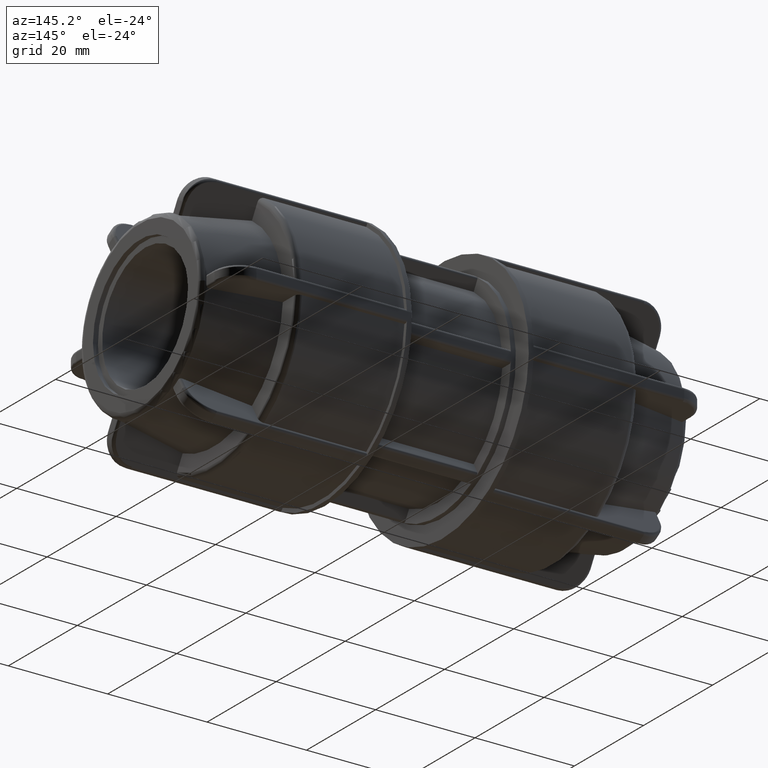
[diagram: clean part render]
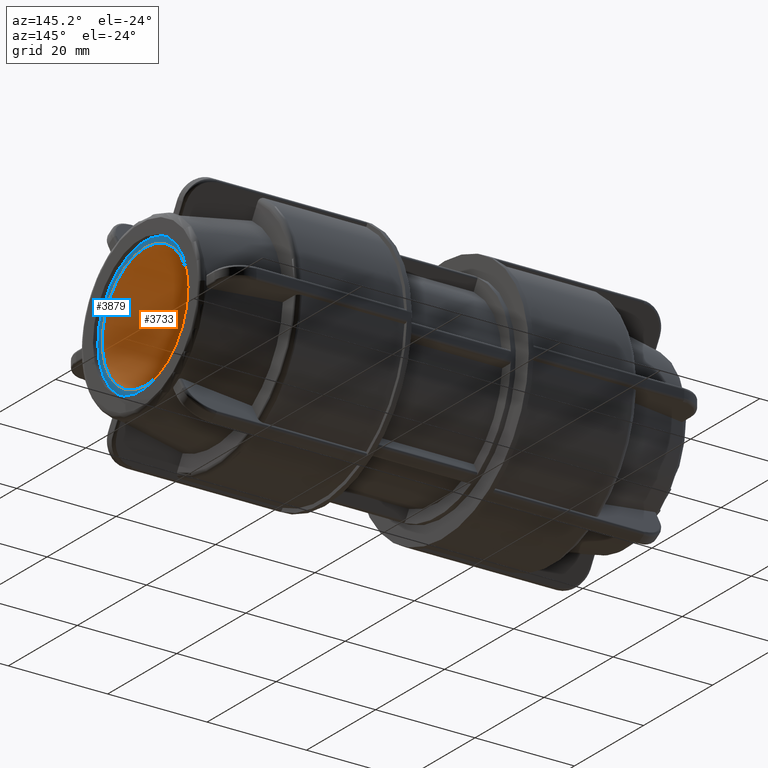
[diagram: same view with the hole feature highlighted: cylindrical wall and planar end face, labeled with their STEP entity ids]
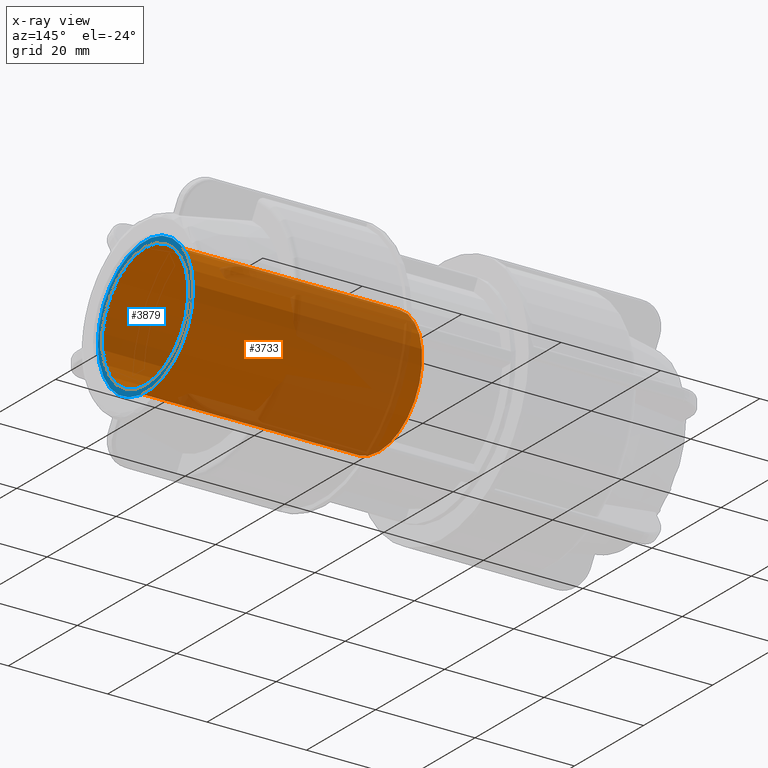
[diagram: x-ray of the same camera — body ghosted, the hole faces saturated]
A machine part, auxiliary view. The highlighted faces form one hole feature of diameter 25 mm: the cylindrical wall (entity #3733, orange) and its adjacent planar end face (entity #3879, blue) — they share a circular edge in the B-rep.
The next image is the same camera in x-ray (body ghosted, the hole faces saturated) — the bore reads through the body.
Wall:
#196=FACE_BOUND('',#587,.T.);
#347=FACE_OUTER_BOUND('',#586,.T.);
#586=EDGE_LOOP('',(#2647));
#587=EDGE_LOOP('',(#2648));
#1299=CIRCLE('',#4018,12.5);
#1300=CIRCLE('',#4019,12.5);
#1558=VERTEX_POINT('',#5706);
#1559=VERTEX_POINT('',#5708);
#1971=EDGE_CURVE('',#1558,#1558,#1299,.T.);
#1972=EDGE_CURVE('',#1559,#1559,#1300,.T.);
#2647=ORIENTED_EDGE('',*,*,#1971,.F.);
#2648=ORIENTED_EDGE('',*,*,#1972,.T.);
#3624=CYLINDRICAL_SURFACE('',#4017,12.5);
#3733=ADVANCED_FACE('',(#347,#196),#3624,.F.);
#4017=AXIS2_PLACEMENT_3D('',#5705,#4613,#4614);
#4018=AXIS2_PLACEMENT_3D('',#5707,#4615,#4616);
#4019=AXIS2_PLACEMENT_3D('',#5709,#4617,#4618);
#4613=DIRECTION('center_axis',(-1.,-3.06161699786838E-16,0.));
#4614=DIRECTION('ref_axis',(0.,0.,1.));
#4615=DIRECTION('center_axis',(-1.,-3.06161699786838E-16,0.));
#4616=DIRECTION('ref_axis',(0.,0.,1.));
#4617=DIRECTION('center_axis',(-1.,-3.06161699786838E-16,0.));
#4618=DIRECTION('ref_axis',(0.,0.,1.));
#5705=CARTESIAN_POINT('Origin',(49.,1.50019232895551E-14,0.));
#5706=CARTESIAN_POINT('',(48.02,1.31710763248298E-14,-12.5));
#5707=CARTESIAN_POINT('Origin',(48.02,1.4701884823764E-14,0.));
#5708=CARTESIAN_POINT('',(0.999999999999996,1.83697019872103E-15,-12.5));
#5709=CARTESIAN_POINT('Origin',(0.999999999999996,3.06161699786838E-16,
0.));
End face:
#207=FACE_BOUND('',#744,.T.);
#286=PLANE('',#4287);
#493=FACE_OUTER_BOUND('',#743,.T.);
#743=EDGE_LOOP('',(#3392));
#744=EDGE_LOOP('',(#3393));
#1299=CIRCLE('',#4018,12.5);
#1445=CIRCLE('',#4288,13.75);
#1558=VERTEX_POINT('',#5706);
#1835=VERTEX_POINT('',#7893);
#1971=EDGE_CURVE('',#1558,#1558,#1299,.T.);
#2383=EDGE_CURVE('',#1835,#1835,#1445,.T.);
#3392=ORIENTED_EDGE('',*,*,#2383,.T.);
#3393=ORIENTED_EDGE('',*,*,#1971,.T.);
#3879=ADVANCED_FACE('',(#493,#207),#286,.T.);
#4018=AXIS2_PLACEMENT_3D('',#5707,#4615,#4616);
#4287=AXIS2_PLACEMENT_3D('',#7892,#5309,#5310);
#4288=AXIS2_PLACEMENT_3D('',#7894,#5311,#5312);
#4615=DIRECTION('center_axis',(-1.,-3.06161699786838E-16,0.));
#4616=DIRECTION('ref_axis',(0.,0.,1.));
#5309=DIRECTION('center_axis',(1.,3.06161699786838E-16,0.));
#5310=DIRECTION('ref_axis',(0.,0.,-1.));
#5311=DIRECTION('center_axis',(1.,3.06161699786838E-16,0.));
#5312=DIRECTION('ref_axis',(0.,0.,-1.));
#5706=CARTESIAN_POINT('',(48.02,1.31710763248298E-14,-12.5));
#5707=CARTESIAN_POINT('Origin',(48.02,1.4701884823764E-14,0.));
#7892=CARTESIAN_POINT('Origin',(48.02,9.20000000000002,0.));
#7893=CARTESIAN_POINT('',(48.02,7.92906372354514,-11.2335412256314));
#7894=CARTESIAN_POINT('Origin',(48.02,1.4701884823764E-14,0.));